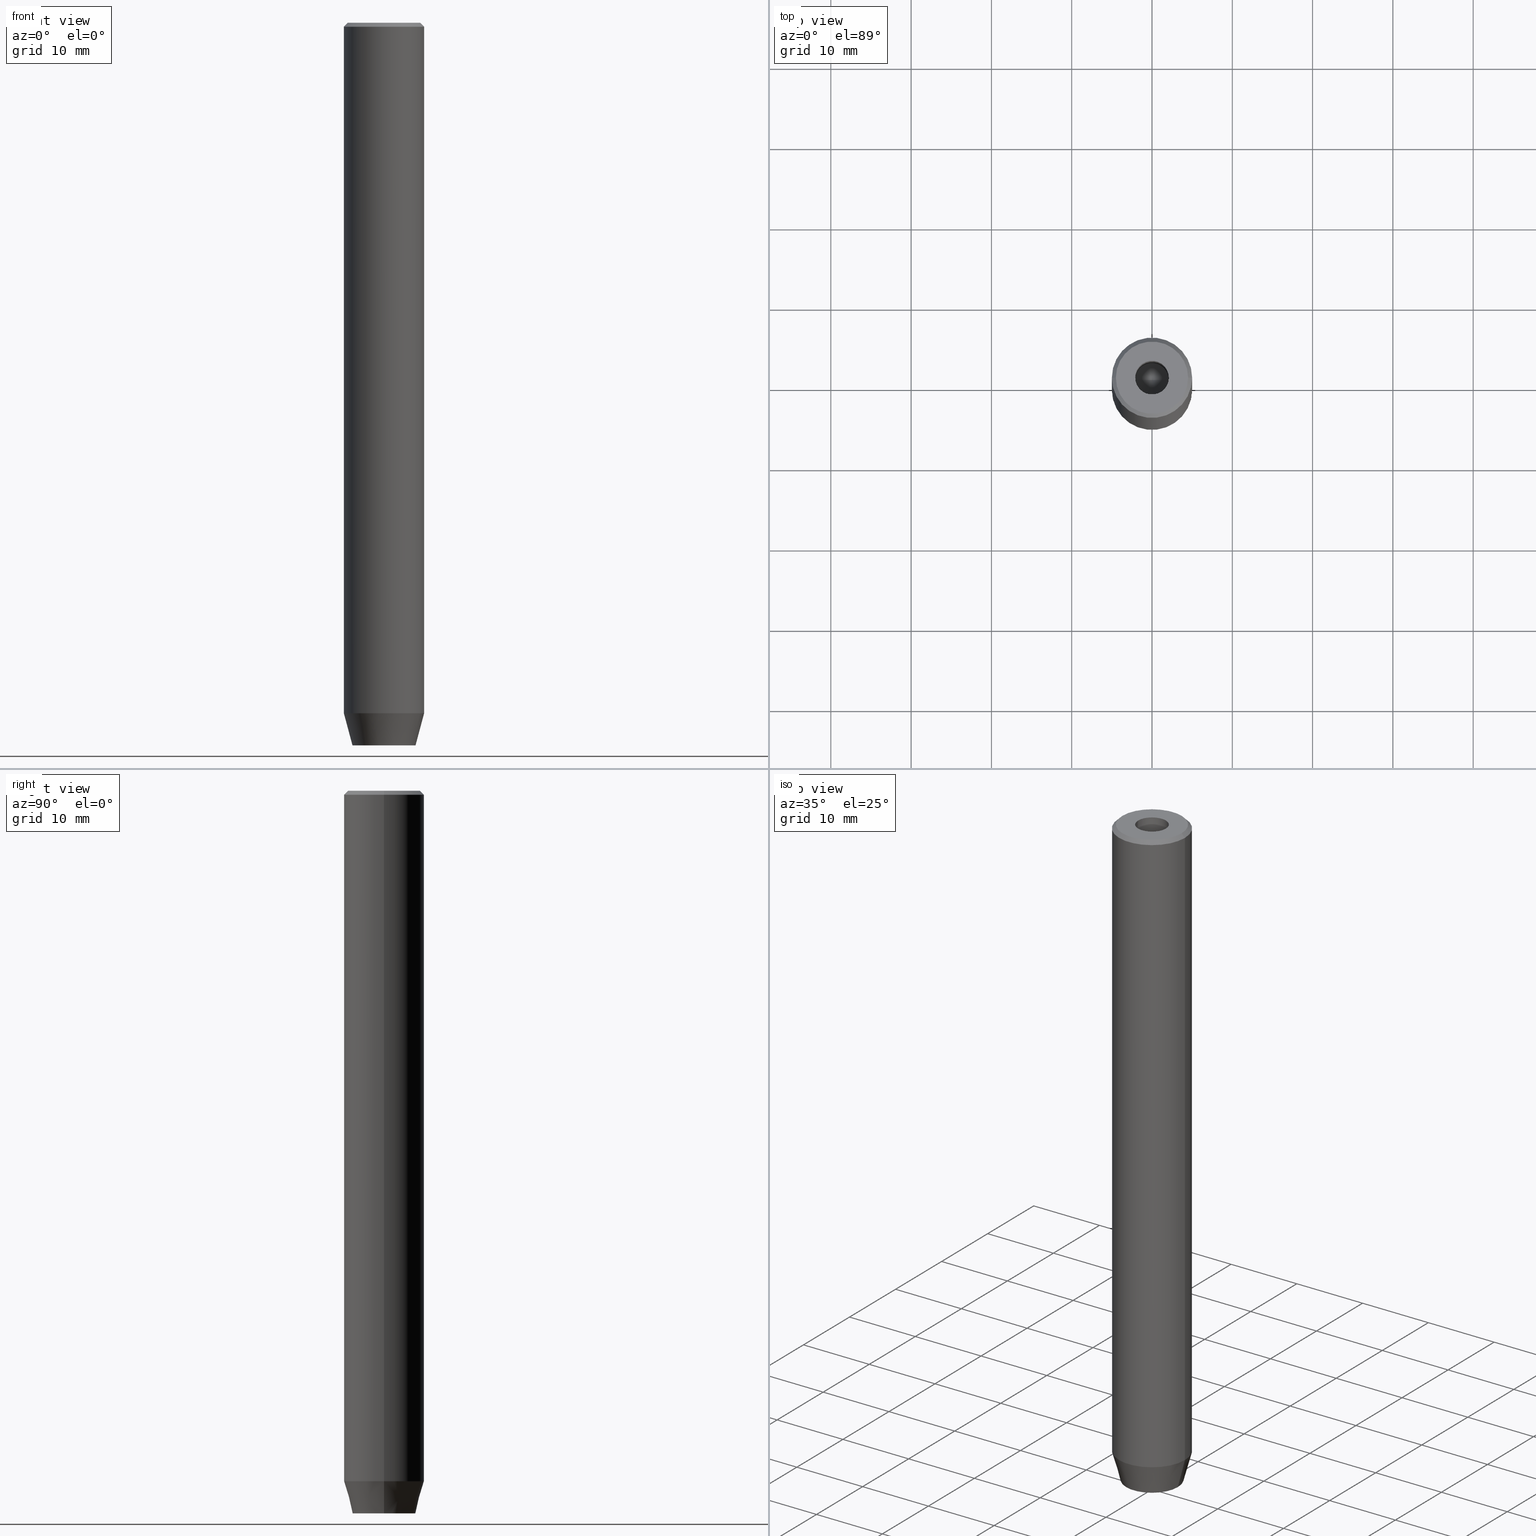
[diagram: canonical four-view strip — front | top / right | iso, engineering-drawing reading convention]
A machine part, canonical four-view strip (front | top / right | iso — engineering-drawing reading convention). The complete STEP part file that produces these views, byte-faithful:
ISO-10303-21;
HEADER;
FILE_DESCRIPTION (( 'STEP AP203' ),
    '1' );
FILE_NAME ('7428.STEP',
    '2024-01-02T21:57:57',
    ( '' ),
    ( '' ),
    'SwSTEP 2.0',
    'SolidWorks 2019',
    '' );
FILE_SCHEMA (( 'CONFIG_CONTROL_DESIGN' ));
ENDSEC;

DATA;
#1 = DATE_TIME_ROLE ( 'classification_date' ) ;
#2 = FACE_OUTER_BOUND ( 'NONE', #259, .T. ) ;
#3 = VECTOR ( 'NONE', #384, 1000.000000000000114 ) ;
#4 = ORIENTED_EDGE ( 'NONE', *, *, #580, .F. ) ;
#5 = CC_DESIGN_APPROVAL ( #71, ( #130 ) ) ;
#6 = DATE_AND_TIME ( #44, #23 ) ;
#7 = DIRECTION ( 'NONE',  ( 5.633679745264339711E-16, 1.000000000000000000, 0.000000000000000000 ) ) ;
#8 = ORIENTED_EDGE ( 'NONE', *, *, #153, .T. ) ;
#9 = CARTESIAN_POINT ( 'NONE',  ( 0.000000000000000000, 0.000000000000000000, -86.00000000000000000 ) ) ;
#10 = ORIENTED_EDGE ( 'NONE', *, *, #163, .T. ) ;
#11 = ADVANCED_FACE ( 'NONE', ( #397 ), #528, .F. ) ;
#12 = DIRECTION ( 'NONE',  ( 1.000000000000000000, 0.000000000000000000, 0.000000000000000000 ) ) ;
#13 = EDGE_LOOP ( 'NONE', ( #513, #24, #208, #211 ) ) ;
#14 = AXIS2_PLACEMENT_3D ( 'NONE', #88, #166, #123 ) ;
#15 = AXIS2_PLACEMENT_3D ( 'NONE', #234, #412, #143 ) ;
#16 = CARTESIAN_POINT ( 'NONE',  ( 2.000000000000000888, 0.000000000000000000, -90.00000000000000000 ) ) ;
#17 = DIRECTION ( 'NONE',  ( 1.000000000000000000, 0.000000000000000000, 0.000000000000000000 ) ) ;
#18 = VERTEX_POINT ( 'NONE', #126 ) ;
#19 = LINE ( 'NONE', #255, #476 ) ;
#20 = LINE ( 'NONE', #215, #484 ) ;
#21 = ORIENTED_EDGE ( 'NONE', *, *, #287, .T. ) ;
#22 = AXIS2_PLACEMENT_3D ( 'NONE', #226, #481, #309 ) ;
#23 = LOCAL_TIME ( 22, 57, 57.00000000000000000, #51 ) ;
#24 = ORIENTED_EDGE ( 'NONE', *, *, #439, .T. ) ;
#25 = DIRECTION ( 'NONE',  ( -0.000000000000000000, -0.000000000000000000, -1.000000000000000000 ) ) ;
#26 = EDGE_CURVE ( 'NONE', #503, #388, #132, .T. ) ;
#27 = ORIENTED_EDGE ( 'NONE', *, *, #540, .F. ) ;
#28 = LINE ( 'NONE', #489, #248 ) ;
#29 = FACE_OUTER_BOUND ( 'NONE', #119, .T. ) ;
#30 = EDGE_CURVE ( 'NONE', #64, #194, #185, .T. ) ;
#31 = LINE ( 'NONE', #39, #334 ) ;
#32 = CARTESIAN_POINT ( 'NONE',  ( -5.000000000000000000, 6.123233995736766282E-16, -86.00000000000000000 ) ) ;
#33 = VECTOR ( 'NONE', #190, 1000.000000000000000 ) ;
#34 = CARTESIAN_POINT ( 'NONE',  ( 0.000000000000000000, 0.000000000000000000, -15.00000000000000000 ) ) ;
#35 = VERTEX_POINT ( 'NONE', #440 ) ;
#36 = PRODUCT_RELATED_PRODUCT_CATEGORY ( 'detail', '', ( #457 ) ) ;
#37 = APPROVAL_ROLE ( '' ) ;
#38 = CARTESIAN_POINT ( 'NONE',  ( -1.000000000000000444, 1.732050807568877637, -90.00000000000000000 ) ) ;
#39 = CARTESIAN_POINT ( 'NONE',  ( -2.099999999999996980, 2.571758278209438013E-16, -15.00000000000000000 ) ) ;
#40 = EDGE_CURVE ( 'NONE', #18, #245, #31, .T. ) ;
#41 = DIRECTION ( 'NONE',  ( -0.2588190451025210725, 3.169619151431769255E-17, 0.9659258262890680902 ) ) ;
#42 = CARTESIAN_POINT ( 'NONE',  ( -3.928203230275506996, 5.466947754046979141E-16, -90.00000000000000000 ) ) ;
#43 = DIRECTION ( 'NONE',  ( -0.000000000000000000, -0.000000000000000000, -1.000000000000000000 ) ) ;
#44 = CALENDAR_DATE ( 2024, 2, 1 ) ;
#45 = DIRECTION ( 'NONE',  ( 0.8660254037844385966, -0.4999999999999999445, 0.000000000000000000 ) ) ;
#46 = AXIS2_PLACEMENT_3D ( 'NONE', #222, #176, #451 ) ;
#47 = EDGE_LOOP ( 'NONE', ( #286, #263, #467, #314 ) ) ;
#48 = LOCAL_TIME ( 22, 57, 57.00000000000000000, #418 ) ;
#49 = PERSON_AND_ORGANIZATION_ROLE ( 'classification_officer' ) ;
#50 = CARTESIAN_POINT ( 'NONE',  ( 0.000000000000000000, 0.000000000000000000, -15.00000000000000000 ) ) ;
#51 = COORDINATED_UNIVERSAL_TIME_OFFSET ( 1, 0, .AHEAD. ) ;
#52 = PLANE ( 'NONE',  #15 ) ;
#53 = ORIENTED_EDGE ( 'NONE', *, *, #410, .F. ) ;
#54 = LINE ( 'NONE', #512, #344 ) ;
#55 = COORDINATED_UNIVERSAL_TIME_OFFSET ( 1, 0, .AHEAD. ) ;
#56 = CONICAL_SURFACE ( 'NONE', #469, 5.000000000000000000, 0.2617993877991497964 ) ;
#57 = ORIENTED_EDGE ( 'NONE', *, *, #60, .F. ) ;
#58 = DIRECTION ( 'NONE',  ( -0.000000000000000000, -0.000000000000000000, 1.000000000000000000 ) ) ;
#59 = VERTEX_POINT ( 'NONE', #81 ) ;
#60 = EDGE_CURVE ( 'NONE', #521, #388, #179, .T. ) ;
#61 = DIRECTION ( 'NONE',  ( -0.000000000000000000, -0.000000000000000000, -1.000000000000000000 ) ) ;
#62 = CARTESIAN_POINT ( 'NONE',  ( 0.000000000000000000, 0.000000000000000000, -1.990051048614449116E-16 ) ) ;
#63 = CARTESIAN_POINT ( 'NONE',  ( 2.099999999999997868, 0.000000000000000000, 0.000000000000000000 ) ) ;
#64 = VERTEX_POINT ( 'NONE', #134 ) ;
#65 = AXIS2_PLACEMENT_3D ( 'NONE', #34, #172, #534 ) ;
#66 = CC_DESIGN_APPROVAL ( #465, ( #261 ) ) ;
#67 = CARTESIAN_POINT ( 'NONE',  ( 0.000000000000000000, 0.000000000000000000, -0.4999999999999857891 ) ) ;
#68 = APPLICATION_CONTEXT ( 'configuration controlled 3d designs of mechanical parts and assemblies' ) ;
#69 = LINE ( 'NONE', #383, #3 ) ;
#70 = VERTEX_POINT ( 'NONE', #217 ) ;
#71 = APPROVAL ( #445, 'NEUR�EN�' ) ;
#72 = LINE ( 'NONE', #559, #396 ) ;
#73 = ORIENTED_EDGE ( 'NONE', *, *, #161, .F. ) ;
#74 = CIRCLE ( 'NONE', #335, 5.000000000000000000 ) ;
#75 = DIRECTION ( 'NONE',  ( -0.000000000000000000, -0.000000000000000000, 1.000000000000000000 ) ) ;
#76 = VECTOR ( 'NONE', #392, 1000.000000000000000 ) ;
#77 = ADVANCED_FACE ( 'NONE', ( #491 ), #173, .F. ) ;
#78 = LINE ( 'NONE', #395, #122 ) ;
#79 = EDGE_LOOP ( 'NONE', ( #152, #53, #545, #330 ) ) ;
#80 = DIRECTION ( 'NONE',  ( 1.000000000000000000, 0.000000000000000000, 0.000000000000000000 ) ) ;
#81 = CARTESIAN_POINT ( 'NONE',  ( -1.999999999999998668, -1.154700538379252572, -90.00000000000000000 ) ) ;
#82 = DESIGN_CONTEXT ( 'detailed design', #68, 'design' ) ;
#83 = CIRCLE ( 'NONE', #358, 2.099999999999996980 ) ;
#84 = APPLICATION_PROTOCOL_DEFINITION ( 'international standard', 'config_control_design', 1994, #68 ) ;
#85 = CONICAL_SURFACE ( 'NONE', #505, 2.099999999999996980, 1.029744258676652535 ) ;
#86 = CARTESIAN_POINT ( 'NONE',  ( 0.000000000000000000, 0.000000000000000000, -15.00000000000000000 ) ) ;
#87 = CARTESIAN_POINT ( 'NONE',  ( -1.999999999999997780, 1.154700538379253238, -90.00000000000000000 ) ) ;
#88 = CARTESIAN_POINT ( 'NONE',  ( 0.000000000000000000, 0.000000000000000000, 0.000000000000000000 ) ) ;
#89 = VERTEX_POINT ( 'NONE', #87 ) ;
#90 = DIRECTION ( 'NONE',  ( -0.000000000000000000, 0.000000000000000000, -1.000000000000000000 ) ) ;
#91 = DIRECTION ( 'NONE',  ( -0.000000000000000000, -0.000000000000000000, 1.000000000000000000 ) ) ;
#92 = PERSON_AND_ORGANIZATION ( #536, #477 ) ;
#93 = AXIS2_PLACEMENT_3D ( 'NONE', #402, #301, #219 ) ;
#94 = DIRECTION ( 'NONE',  ( 1.000000000000000000, 0.000000000000000000, 0.000000000000000000 ) ) ;
#95 = APPROVAL_STATUS ( 'not_yet_approved' ) ;
#96 = FACE_OUTER_BOUND ( 'NONE', #452, .T. ) ;
#97 = EDGE_CURVE ( 'NONE', #264, #464, #414, .T. ) ;
#98 = PERSON_AND_ORGANIZATION ( #536, #477 ) ;
#99 = CARTESIAN_POINT ( 'NONE',  ( -5.000000000000000000, 6.123233995736766282E-16, -0.4999999999999857891 ) ) ;
#100 = ORIENTED_EDGE ( 'NONE', *, *, #432, .F. ) ;
#101 = LINE ( 'NONE', #283, #260 ) ;
#102 = VECTOR ( 'NONE', #337, 1000.000000000000000 ) ;
#103 = EDGE_CURVE ( 'NONE', #284, #89, #170, .T. ) ;
#104 = ORIENTED_EDGE ( 'NONE', *, *, #161, .T. ) ;
#105 = CARTESIAN_POINT ( 'NONE',  ( 2.000000000000000888, -1.154700538379252572, -87.20000000000000284 ) ) ;
#106 = DIRECTION ( 'NONE',  ( -0.8660254037844385966, 0.5000000000000001110, 0.000000000000000000 ) ) ;
#107 = ORIENTED_EDGE ( 'NONE', *, *, #205, .T. ) ;
#108 = VERTEX_POINT ( 'NONE', #485 ) ;
#109 = ORIENTED_EDGE ( 'NONE', *, *, #164, .T. ) ;
#110 = DIRECTION ( 'NONE',  ( 0.000000000000000000, 0.000000000000000000, -1.000000000000000000 ) ) ;
#111 = EDGE_LOOP ( 'NONE', ( #324, #488, #100, #350 ) ) ;
#112 = VECTOR ( 'NONE', #7, 1000.000000000000000 ) ;
#113 = PLANE ( 'NONE',  #443 ) ;
#114 = ORIENTED_EDGE ( 'NONE', *, *, #26, .T. ) ;
#115 = FACE_OUTER_BOUND ( 'NONE', #148, .T. ) ;
#116 = ORIENTED_EDGE ( 'NONE', *, *, #311, .F. ) ;
#117 = EDGE_LOOP ( 'NONE', ( #121, #423, #249, #425 ) ) ;
#118 = FACE_OUTER_BOUND ( 'NONE', #339, .T. ) ;
#119 = EDGE_LOOP ( 'NONE', ( #196, #557, #566, #365 ) ) ;
#120 = EDGE_CURVE ( 'NONE', #254, #380, #354, .T. ) ;
#121 = ORIENTED_EDGE ( 'NONE', *, *, #287, .F. ) ;
#122 = VECTOR ( 'NONE', #178, 1000.000000000000000 ) ;
#123 = DIRECTION ( 'NONE',  ( 1.000000000000000000, 0.000000000000000000, 0.000000000000000000 ) ) ;
#124 = EDGE_LOOP ( 'NONE', ( #444, #526, #520 ) ) ;
#125 = EDGE_CURVE ( 'NONE', #35, #245, #83, .T. ) ;
#126 = CARTESIAN_POINT ( 'NONE',  ( -3.982994051648894933E-15, 0.000000000000000000, -16.26180729995787644 ) ) ;
#127 = PLANE ( 'NONE',  #461 ) ;
#128 = VECTOR ( 'NONE', #553, 999.9999999999998863 ) ;
#129 = CARTESIAN_POINT ( 'NONE',  ( -2.099999999999998757, 2.571758278209439985E-16, -1.990051048614449116E-16 ) ) ;
#130 = PRODUCT_DEFINITION ( 'NEZN�M�', '', #261, #82 ) ;
#131 = CARTESIAN_POINT ( 'NONE',  ( -1.000000000000000222, -1.732050807568877637, -87.20000000000000284 ) ) ;
#132 = LINE ( 'NONE', #361, #366 ) ;
#133 = CALENDAR_DATE ( 2024, 2, 1 ) ;
#134 = CARTESIAN_POINT ( 'NONE',  ( 5.000000000000000000, 0.000000000000000000, -0.4999999999999857891 ) ) ;
#135 = ADVANCED_FACE ( 'NONE', ( #578 ), #429, .T. ) ;
#136 = VECTOR ( 'NONE', #43, 1000.000000000000000 ) ;
#137 = VECTOR ( 'NONE', #258, 1000.000000000000000 ) ;
#138 = APPROVAL_PERSON_ORGANIZATION ( #181, #390, #364 ) ;
#139 = CARTESIAN_POINT ( 'NONE',  ( 0.000000000000000000, 0.000000000000000000, 0.000000000000000000 ) ) ;
#140 = VERTEX_POINT ( 'NONE', #317 ) ;
#141 = MANIFOLD_SOLID_BREP ( 'Vrt�k z�vitn�ku pro M5 z�vit1', #156 ) ;
#142 = ADVANCED_FACE ( 'NONE', ( #243 ), #56, .T. ) ;
#143 = DIRECTION ( 'NONE',  ( 1.000000000000000000, 0.000000000000000000, 0.000000000000000000 ) ) ;
#144 = ORIENTED_EDGE ( 'NONE', *, *, #326, .F. ) ;
#145 = DIRECTION ( 'NONE',  ( -0.000000000000000000, -0.000000000000000000, 1.000000000000000000 ) ) ;
#146 = CC_DESIGN_PERSON_AND_ORGANIZATION_ASSIGNMENT ( #454, #411, ( #261 ) ) ;
#147 = CIRCLE ( 'NONE', #213, 5.000000000000000000 ) ;
#148 = EDGE_LOOP ( 'NONE', ( #435, #516, #522, #332 ) ) ;
#149 = CIRCLE ( 'NONE', #546, 5.000000000000000000 ) ;
#150 = DIRECTION ( 'NONE',  ( 1.000000000000000000, 0.000000000000000000, 0.000000000000000000 ) ) ;
#151 = DIRECTION ( 'NONE',  ( -0.7071067811865450192, 0.000000000000000000, -0.7071067811865500152 ) ) ;
#152 = ORIENTED_EDGE ( 'NONE', *, *, #415, .T. ) ;
#153 = EDGE_CURVE ( 'NONE', #140, #167, #74, .T. ) ;
#154 = DIRECTION ( 'NONE',  ( 5.633679745264339711E-16, 1.000000000000000000, 0.000000000000000000 ) ) ;
#155 = CARTESIAN_POINT ( 'NONE',  ( 2.168404344971008868E-16, -2.309401076758503812, -87.20000000000000284 ) ) ;
#156 = CLOSED_SHELL ( 'NONE', ( #391, #225, #135, #303, #347, #455, #229, #323, #142, #474, #434, #77, #352, #11, #273, #232, #514, #381, #198 ) ) ;
#157 = VERTEX_POINT ( 'NONE', #363 ) ;
#158 = AXIS2_PLACEMENT_3D ( 'NONE', #50, #549, #458 ) ;
#159 = ORIENTED_EDGE ( 'NONE', *, *, #563, .T. ) ;
#160 = CARTESIAN_POINT ( 'NONE',  ( 0.000000000000000000, 0.000000000000000000, -90.00000000000000000 ) ) ;
#161 = EDGE_CURVE ( 'NONE', #191, #254, #498, .T. ) ;
#162 = ORIENTED_EDGE ( 'NONE', *, *, #253, .F. ) ;
#163 = EDGE_CURVE ( 'NONE', #167, #194, #240, .T. ) ;
#164 = EDGE_CURVE ( 'NONE', #140, #64, #555, .T. ) ;
#165 = CIRCLE ( 'NONE', #281, 3.928203230275506996 ) ;
#166 = DIRECTION ( 'NONE',  ( -0.000000000000000000, -0.000000000000000000, 1.000000000000000000 ) ) ;
#167 = VERTEX_POINT ( 'NONE', #416 ) ;
#168 = ORIENTED_EDGE ( 'NONE', *, *, #393, .F. ) ;
#169 = CYLINDRICAL_SURFACE ( 'NONE', #14, 5.000000000000000000 ) ;
#170 = LINE ( 'NONE', #360, #289 ) ;
#171 = CC_DESIGN_PERSON_AND_ORGANIZATION_ASSIGNMENT ( #351, #482, ( #457 ) ) ;
#172 = DIRECTION ( 'NONE',  ( -0.000000000000000000, -0.000000000000000000, 1.000000000000000000 ) ) ;
#173 = PLANE ( 'NONE',  #212 ) ;
#174 = CARTESIAN_POINT ( 'NONE',  ( 0.000000000000000000, 2.309401076758503812, -87.20000000000000284 ) ) ;
#175 = AXIS2_PLACEMENT_3D ( 'NONE', #340, #110, #333 ) ;
#176 = DIRECTION ( 'NONE',  ( -0.000000000000000000, -0.000000000000000000, 1.000000000000000000 ) ) ;
#177 = DIRECTION ( 'NONE',  ( -0.8660254037844388186, -0.4999999999999996114, 0.000000000000000000 ) ) ;
#178 = DIRECTION ( 'NONE',  ( 0.8660254037844385966, -0.5000000000000001110, 0.000000000000000000 ) ) ;
#179 = LINE ( 'NONE', #220, #136 ) ;
#180 = EDGE_CURVE ( 'NONE', #59, #89, #371, .T. ) ;
#181 = PERSON_AND_ORGANIZATION ( #536, #477 ) ;
#182 = DIRECTION ( 'NONE',  ( -0.000000000000000000, -0.000000000000000000, 1.000000000000000000 ) ) ;
#183 = ORIENTED_EDGE ( 'NONE', *, *, #519, .T. ) ;
#184 = CC_DESIGN_PERSON_AND_ORGANIZATION_ASSIGNMENT ( #92, #276, ( #261 ) ) ;
#185 = CIRCLE ( 'NONE', #568, 5.000000000000000000 ) ;
#186 = CIRCLE ( 'NONE', #430, 3.928203230275506996 ) ;
#187 = AXIS2_PLACEMENT_3D ( 'NONE', #300, #480, #356 ) ;
#188 = PLANE ( 'NONE',  #554 ) ;
#189 = ORIENTED_EDGE ( 'NONE', *, *, #164, .F. ) ;
#190 = DIRECTION ( 'NONE',  ( 0.8660254037844385966, -0.5000000000000001110, 0.000000000000000000 ) ) ;
#191 = VERTEX_POINT ( 'NONE', #587 ) ;
#192 = CARTESIAN_POINT ( 'NONE',  ( -5.000000000000000000, 6.123233995736766282E-16, 0.000000000000000000 ) ) ;
#193 = CALENDAR_DATE ( 2024, 2, 1 ) ;
#194 = VERTEX_POINT ( 'NONE', #99 ) ;
#195 = AXIS2_PLACEMENT_3D ( 'NONE', #438, #523, #80 ) ;
#196 = ORIENTED_EDGE ( 'NONE', *, *, #497, .T. ) ;
#197 = DIRECTION ( 'NONE',  ( 0.000000000000000000, 0.000000000000000000, -1.000000000000000000 ) ) ;
#198 = ADVANCED_FACE ( 'NONE', ( #96 ), #279, .F. ) ;
#199 = ORIENTED_EDGE ( 'NONE', *, *, #163, .F. ) ;
#200 = EDGE_CURVE ( 'NONE', #264, #194, #54, .T. ) ;
#201 = LINE ( 'NONE', #63, #137 ) ;
#202 = ORIENTED_EDGE ( 'NONE', *, *, #539, .F. ) ;
#203 = DIRECTION ( 'NONE',  ( 1.000000000000000000, 0.000000000000000000, 0.000000000000000000 ) ) ;
#204 = EDGE_LOOP ( 'NONE', ( #114, #57, #262, #299 ) ) ;
#205 = EDGE_CURVE ( 'NONE', #521, #70, #374, .T. ) ;
#206 = DIRECTION ( 'NONE',  ( -0.000000000000000000, -0.000000000000000000, 1.000000000000000000 ) ) ;
#207 = EDGE_LOOP ( 'NONE', ( #144, #162 ) ) ;
#208 = ORIENTED_EDGE ( 'NONE', *, *, #247, .T. ) ;
#209 =( NAMED_UNIT ( * ) PLANE_ANGLE_UNIT ( ) SI_UNIT ( $, .RADIAN. ) );
#210 = CYLINDRICAL_SURFACE ( 'NONE', #367, 5.000000000000000000 ) ;
#211 = ORIENTED_EDGE ( 'NONE', *, *, #558, .F. ) ;
#212 = AXIS2_PLACEMENT_3D ( 'NONE', #572, #313, #401 ) ;
#213 = AXIS2_PLACEMENT_3D ( 'NONE', #67, #251, #424 ) ;
#214 = CC_DESIGN_SECURITY_CLASSIFICATION ( #398, ( #261 ) ) ;
#215 = CARTESIAN_POINT ( 'NONE',  ( -1.000000000000000222, -1.732050807568877637, -90.00000000000000000 ) ) ;
#216 = DIRECTION ( 'NONE',  ( -0.5000000000000000000, -0.8660254037844387076, 0.000000000000000000 ) ) ;
#217 = CARTESIAN_POINT ( 'NONE',  ( -1.999999999999998668, -1.154700538379252572, -87.20000000000000284 ) ) ;
#218 = COORDINATED_UNIVERSAL_TIME_OFFSET ( 1, 0, .AHEAD. ) ;
#219 = DIRECTION ( 'NONE',  ( 1.000000000000000000, 0.000000000000000000, 0.000000000000000000 ) ) ;
#220 = CARTESIAN_POINT ( 'NONE',  ( 2.168404344971008868E-16, -2.309401076758503812, -87.20000000000000284 ) ) ;
#221 = DIRECTION ( 'NONE',  ( 1.000000000000000000, 0.000000000000000000, 0.000000000000000000 ) ) ;
#222 = CARTESIAN_POINT ( 'NONE',  ( 0.000000000000000000, 0.000000000000000000, 0.000000000000000000 ) ) ;
#223 = CARTESIAN_POINT ( 'NONE',  ( 0.000000000000000000, 0.000000000000000000, 0.000000000000000000 ) ) ;
#224 = AXIS2_PLACEMENT_3D ( 'NONE', #139, #145, #244 ) ;
#225 = ADVANCED_FACE ( 'NONE', ( #277 ), #377, .F. ) ;
#226 = CARTESIAN_POINT ( 'NONE',  ( 0.000000000000000000, 0.000000000000000000, 0.000000000000000000 ) ) ;
#227 = LOCAL_TIME ( 22, 57, 57.00000000000000000, #55 ) ;
#228 = CARTESIAN_POINT ( 'NONE',  ( 0.000000000000000000, 0.000000000000000000, 0.000000000000000000 ) ) ;
#229 = ADVANCED_FACE ( 'NONE', ( #231, #409 ), #52, .T. ) ;
#230 = COORDINATED_UNIVERSAL_TIME_OFFSET ( 1, 0, .AHEAD. ) ;
#231 = FACE_BOUND ( 'NONE', #207, .T. ) ;
#232 = ADVANCED_FACE ( 'NONE', ( #2 ), #188, .F. ) ;
#233 = LINE ( 'NONE', #16, #102 ) ;
#234 = CARTESIAN_POINT ( 'NONE',  ( 0.000000000000000000, 0.000000000000000000, 0.000000000000000000 ) ) ;
#235 = VERTEX_POINT ( 'NONE', #285 ) ;
#236 = APPROVAL_ROLE ( '' ) ;
#237 = VECTOR ( 'NONE', #403, 1000.000000000000000 ) ;
#238 = VECTOR ( 'NONE', #459, 1000.000000000000000 ) ;
#239 = LOCAL_TIME ( 22, 57, 57.00000000000000000, #218 ) ;
#240 = LINE ( 'NONE', #192, #387 ) ;
#241 = ORIENTED_EDGE ( 'NONE', *, *, #580, .T. ) ;
#242 = DATE_TIME_ROLE ( 'creation_date' ) ;
#243 = FACE_OUTER_BOUND ( 'NONE', #13, .T. ) ;
#244 = DIRECTION ( 'NONE',  ( 1.000000000000000000, 0.000000000000000000, 0.000000000000000000 ) ) ;
#245 = VERTEX_POINT ( 'NONE', #466 ) ;
#246 = PLANE ( 'NONE',  #175 ) ;
#247 = EDGE_CURVE ( 'NONE', #157, #140, #101, .T. ) ;
#248 = VECTOR ( 'NONE', #441, 1000.000000000000000 ) ;
#249 = ORIENTED_EDGE ( 'NONE', *, *, #257, .F. ) ;
#250 = CARTESIAN_POINT ( 'NONE',  ( 0.000000000000000000, 3.928203230275506996, -90.00000000000000000 ) ) ;
#251 = DIRECTION ( 'NONE',  ( 0.000000000000000000, 0.000000000000000000, -1.000000000000000000 ) ) ;
#252 = CC_DESIGN_DATE_AND_TIME_ASSIGNMENT ( #586, #1, ( #398 ) ) ;
#253 = EDGE_CURVE ( 'NONE', #394, #421, #582, .T. ) ;
#254 = VERTEX_POINT ( 'NONE', #343 ) ;
#255 = CARTESIAN_POINT ( 'NONE',  ( -1.999999999999998224, 1.126735949052866956E-15, -87.20000000000000284 ) ) ;
#256 = ORIENTED_EDGE ( 'NONE', *, *, #40, .F. ) ;
#257 = EDGE_CURVE ( 'NONE', #194, #64, #147, .T. ) ;
#258 = DIRECTION ( 'NONE',  ( -0.000000000000000000, -0.000000000000000000, 1.000000000000000000 ) ) ;
#259 = EDGE_LOOP ( 'NONE', ( #345, #27, #73, #159 ) ) ;
#260 = VECTOR ( 'NONE', #463, 1000.000000000000114 ) ;
#261 = PRODUCT_DEFINITION_FORMATION_WITH_SPECIFIED_SOURCE ( 'LIBOVOLN�', '', #457, .NOT_KNOWN. ) ;
#262 = ORIENTED_EDGE ( 'NONE', *, *, #519, .F. ) ;
#263 = ORIENTED_EDGE ( 'NONE', *, *, #103, .F. ) ;
#264 = VERTEX_POINT ( 'NONE', #532 ) ;
#265 = DIRECTION ( 'NONE',  ( 0.8660254037844385966, 0.5000000000000001110, 0.000000000000000000 ) ) ;
#266 = DIRECTION ( 'NONE',  ( 0.8660254037844388186, 0.4999999999999996669, 0.000000000000000000 ) ) ;
#267 = VECTOR ( 'NONE', #490, 1000.000000000000000 ) ;
#268 = PERSON_AND_ORGANIZATION ( #536, #477 ) ;
#269 = PLANE ( 'NONE',  #298 ) ;
#270 = DIRECTION ( 'NONE',  ( 1.000000000000000000, 0.000000000000000000, 0.000000000000000000 ) ) ;
#271 = CARTESIAN_POINT ( 'NONE',  ( 2.099999999999996980, 0.000000000000000000, -15.00000000000000000 ) ) ;
#272 = CARTESIAN_POINT ( 'NONE',  ( 0.9999999999999997780, -1.732050807568878747, -87.20000000000000284 ) ) ;
#273 = ADVANCED_FACE ( 'NONE', ( #581 ), #269, .F. ) ;
#274 = CARTESIAN_POINT ( 'NONE',  ( 2.168404344971008868E-16, -2.309401076758503812, -90.00000000000000000 ) ) ;
#275 = CARTESIAN_POINT ( 'NONE',  ( 0.000000000000000000, 0.000000000000000000, -15.00000000000000000 ) ) ;
#276 = PERSON_AND_ORGANIZATION_ROLE ( 'creator' ) ;
#277 = FACE_OUTER_BOUND ( 'NONE', #124, .T. ) ;
#278 = ORIENTED_EDGE ( 'NONE', *, *, #432, .T. ) ;
#279 = CYLINDRICAL_SURFACE ( 'NONE', #224, 2.099999999999997868 ) ;
#280 = ORIENTED_EDGE ( 'NONE', *, *, #125, .T. ) ;
#281 = AXIS2_PLACEMENT_3D ( 'NONE', #160, #75, #203 ) ;
#282 = VECTOR ( 'NONE', #25, 1000.000000000000000 ) ;
#283 = CARTESIAN_POINT ( 'NONE',  ( 5.000000000000000000, 0.000000000000000000, -86.00000000000000000 ) ) ;
#284 = VERTEX_POINT ( 'NONE', #448 ) ;
#285 = CARTESIAN_POINT ( 'NONE',  ( 0.000000000000000000, 2.309401076758503812, -90.00000000000000000 ) ) ;
#286 = ORIENTED_EDGE ( 'NONE', *, *, #180, .T. ) ;
#287 = EDGE_CURVE ( 'NONE', #464, #264, #315, .T. ) ;
#288 = ORIENTED_EDGE ( 'NONE', *, *, #26, .F. ) ;
#289 = VECTOR ( 'NONE', #405, 1000.000000000000000 ) ;
#290 = AXIS2_PLACEMENT_3D ( 'NONE', #294, #292, #433 ) ;
#291 = ORIENTED_EDGE ( 'NONE', *, *, #253, .T. ) ;
#292 = DIRECTION ( 'NONE',  ( 0.000000000000000000, 0.000000000000000000, -1.000000000000000000 ) ) ;
#293 = EDGE_LOOP ( 'NONE', ( #8, #10, #382, #189 ) ) ;
#294 = CARTESIAN_POINT ( 'NONE',  ( 0.000000000000000000, 0.000000000000000000, 0.000000000000000000 ) ) ;
#295 = EDGE_LOOP ( 'NONE', ( #525, #21 ) ) ;
#296 = FACE_BOUND ( 'NONE', #473, .T. ) ;
#297 = ORIENTED_EDGE ( 'NONE', *, *, #326, .T. ) ;
#298 = AXIS2_PLACEMENT_3D ( 'NONE', #584, #404, #90 ) ;
#299 = ORIENTED_EDGE ( 'NONE', *, *, #410, .T. ) ;
#300 = CARTESIAN_POINT ( 'NONE',  ( 0.000000000000000000, 0.000000000000000000, 0.000000000000000000 ) ) ;
#301 = DIRECTION ( 'NONE',  ( -0.000000000000000000, -0.000000000000000000, 1.000000000000000000 ) ) ;
#302 = ORIENTED_EDGE ( 'NONE', *, *, #180, .F. ) ;
#303 = ADVANCED_FACE ( 'NONE', ( #29 ), #321, .T. ) ;
#304 = FACE_OUTER_BOUND ( 'NONE', #509, .T. ) ;
#305 = DIRECTION ( 'NONE',  ( -0.8571673007021113344, 1.049727191138617463E-16, 0.5150380749100558209 ) ) ;
#306 = LINE ( 'NONE', #271, #453 ) ;
#307 = DIRECTION ( 'NONE',  ( 0.4999999999999996669, -0.8660254037844388186, 0.000000000000000000 ) ) ;
#308 = LINE ( 'NONE', #569, #76 ) ;
#309 = DIRECTION ( 'NONE',  ( 1.000000000000000000, 0.000000000000000000, 0.000000000000000000 ) ) ;
#310 = ORIENTED_EDGE ( 'NONE', *, *, #331, .F. ) ;
#311 = EDGE_CURVE ( 'NONE', #89, #235, #359, .T. ) ;
#312 = FACE_OUTER_BOUND ( 'NONE', #293, .T. ) ;
#313 = DIRECTION ( 'NONE',  ( -1.000000000000000000, 5.633679745264339711E-16, 0.000000000000000000 ) ) ;
#314 = ORIENTED_EDGE ( 'NONE', *, *, #357, .T. ) ;
#315 = CIRCLE ( 'NONE', #46, 4.500000000000017764 ) ;
#316 = LOCAL_TIME ( 22, 57, 57.00000000000000000, #230 ) ;
#317 = CARTESIAN_POINT ( 'NONE',  ( 5.000000000000000000, 0.000000000000000000, -86.00000000000000000 ) ) ;
#318 = DATE_AND_TIME ( #500, #239 ) ;
#319 = CARTESIAN_POINT ( 'NONE',  ( 1.000000000000000444, 1.732050807568877637, -87.20000000000000284 ) ) ;
#320 = ORIENTED_EDGE ( 'NONE', *, *, #205, .F. ) ;
#321 = CONICAL_SURFACE ( 'NONE', #195, 5.000000000000000000, 0.2617993877991497964 ) ;
#322 = CARTESIAN_POINT ( 'NONE',  ( 5.000000000000000000, 0.000000000000000000, 0.000000000000000000 ) ) ;
#323 = ADVANCED_FACE ( 'NONE', ( #406 ), #169, .T. ) ;
#324 = ORIENTED_EDGE ( 'NONE', *, *, #311, .T. ) ;
#325 = ORIENTED_EDGE ( 'NONE', *, *, #120, .T. ) ;
#326 = EDGE_CURVE ( 'NONE', #421, #394, #562, .T. ) ;
#327 = FACE_OUTER_BOUND ( 'NONE', #499, .T. ) ;
#328 = CARTESIAN_POINT ( 'NONE',  ( 0.000000000000000000, 0.000000000000000000, -86.00000000000000000 ) ) ;
#329 = SHAPE_DEFINITION_REPRESENTATION ( #552, #355 ) ;
#330 = ORIENTED_EDGE ( 'NONE', *, *, #540, .T. ) ;
#331 = EDGE_CURVE ( 'NONE', #235, #108, #78, .T. ) ;
#332 = ORIENTED_EDGE ( 'NONE', *, *, #30, .F. ) ;
#333 = DIRECTION ( 'NONE',  ( -1.000000000000000000, 0.000000000000000000, -0.000000000000000000 ) ) ;
#334 = VECTOR ( 'NONE', #305, 1000.000000000000000 ) ;
#335 = AXIS2_PLACEMENT_3D ( 'NONE', #328, #182, #12 ) ;
#336 = APPROVAL_PERSON_ORGANIZATION ( #548, #465, #236 ) ;
#337 = DIRECTION ( 'NONE',  ( 0.000000000000000000, -1.000000000000000000, 0.000000000000000000 ) ) ;
#338 = CC_DESIGN_PERSON_AND_ORGANIZATION_ASSIGNMENT ( #98, #450, ( #130 ) ) ;
#339 = EDGE_LOOP ( 'NONE', ( #493, #413 ) ) ;
#340 = CARTESIAN_POINT ( 'NONE',  ( 0.000000000000000000, 0.000000000000000000, -87.20000000000000284 ) ) ;
#341 = ORIENTED_EDGE ( 'NONE', *, *, #415, .F. ) ;
#342 =( LENGTH_UNIT ( ) NAMED_UNIT ( * ) SI_UNIT ( .MILLI., .METRE. ) );
#343 = CARTESIAN_POINT ( 'NONE',  ( 2.000000000000000888, 1.154700538379251462, -87.20000000000000284 ) ) ;
#344 = VECTOR ( 'NONE', #151, 1000.000000000000000 ) ;
#345 = ORIENTED_EDGE ( 'NONE', *, *, #331, .T. ) ;
#346 = VECTOR ( 'NONE', #265, 1000.000000000000000 ) ;
#347 = ADVANCED_FACE ( 'NONE', ( #312 ), #210, .T. ) ;
#348 = MECHANICAL_CONTEXT ( 'NONE', #529, 'mechanical' ) ;
#349 = LINE ( 'NONE', #353, #267 ) ;
#350 = ORIENTED_EDGE ( 'NONE', *, *, #103, .T. ) ;
#351 = PERSON_AND_ORGANIZATION ( #536, #477 ) ;
#352 = ADVANCED_FACE ( 'NONE', ( #537 ), #127, .F. ) ;
#353 = CARTESIAN_POINT ( 'NONE',  ( -1.999999999999998668, -1.154700538379252572, -87.20000000000000284 ) ) ;
#354 = LINE ( 'NONE', #583, #237 ) ;
#355 = ADVANCED_BREP_SHAPE_REPRESENTATION ( '7428', ( #141, #187 ), #431 ) ;
#356 = DIRECTION ( 'NONE',  ( 1.000000000000000000, 0.000000000000000000, 0.000000000000000000 ) ) ;
#357 = EDGE_CURVE ( 'NONE', #70, #59, #349, .T. ) ;
#358 = AXIS2_PLACEMENT_3D ( 'NONE', #275, #533, #270 ) ;
#359 = LINE ( 'NONE', #38, #346 ) ;
#360 = CARTESIAN_POINT ( 'NONE',  ( -1.999999999999997780, 1.154700538379253238, -87.20000000000000284 ) ) ;
#361 = CARTESIAN_POINT ( 'NONE',  ( 0.9999999999999997780, -1.732050807568878747, -90.00000000000000000 ) ) ;
#362 = PERSON_AND_ORGANIZATION ( #536, #477 ) ;
#363 = CARTESIAN_POINT ( 'NONE',  ( 3.928203230275506996, 0.000000000000000000, -90.00000000000000000 ) ) ;
#364 = APPROVAL_ROLE ( '' ) ;
#365 = ORIENTED_EDGE ( 'NONE', *, *, #247, .F. ) ;
#366 = VECTOR ( 'NONE', #177, 1000.000000000000114 ) ;
#367 = AXIS2_PLACEMENT_3D ( 'NONE', #400, #483, #571 ) ;
#368 = CARTESIAN_POINT ( 'NONE',  ( 1.000000000000000444, 1.732050807568877637, -87.20000000000000284 ) ) ;
#369 = EDGE_LOOP ( 'NONE', ( #561, #550, #320, #478 ) ) ;
#370 = APPROVAL_DATE_TIME ( #318, #71 ) ;
#371 = LINE ( 'NONE', #542, #112 ) ;
#372 = DATE_AND_TIME ( #133, #48 ) ;
#373 = EDGE_CURVE ( 'NONE', #18, #35, #306, .T. ) ;
#374 = LINE ( 'NONE', #508, #128 ) ;
#375 = DATE_AND_TIME ( #193, #227 ) ;
#376 = DIRECTION ( 'NONE',  ( -0.5000000000000001110, 0.8660254037844385966, 0.000000000000000000 ) ) ;
#377 = CONICAL_SURFACE ( 'NONE', #158, 2.099999999999996980, 1.029744258676652535 ) ;
#378 = DIRECTION ( 'NONE',  ( -0.000000000000000000, -0.000000000000000000, 1.000000000000000000 ) ) ;
#379 = CC_DESIGN_PERSON_AND_ORGANIZATION_ASSIGNMENT ( #362, #49, ( #398 ) ) ;
#380 = VERTEX_POINT ( 'NONE', #442 ) ;
#381 = ADVANCED_FACE ( 'NONE', ( #446 ), #85, .F. ) ;
#382 = ORIENTED_EDGE ( 'NONE', *, *, #257, .T. ) ;
#383 = CARTESIAN_POINT ( 'NONE',  ( 0.9999999999999997780, -1.732050807568878747, -87.20000000000000284 ) ) ;
#384 = DIRECTION ( 'NONE',  ( -0.8660254037844388186, -0.4999999999999996114, 0.000000000000000000 ) ) ;
#385 = VERTEX_POINT ( 'NONE', #42 ) ;
#386 = DIRECTION ( 'NONE',  ( -1.000000000000000000, 0.000000000000000000, -0.000000000000000000 ) ) ;
#387 = VECTOR ( 'NONE', #378, 1000.000000000000000 ) ;
#388 = VERTEX_POINT ( 'NONE', #274 ) ;
#389 = LINE ( 'NONE', #511, #535 ) ;
#390 = APPROVAL ( #95, 'NEUR�EN�' ) ;
#391 = ADVANCED_FACE ( 'NONE', ( #304 ), #577, .F. ) ;
#392 = DIRECTION ( 'NONE',  ( -0.000000000000000000, -0.000000000000000000, -1.000000000000000000 ) ) ;
#393 = EDGE_CURVE ( 'NONE', #245, #35, #495, .T. ) ;
#394 = VERTEX_POINT ( 'NONE', #129 ) ;
#395 = CARTESIAN_POINT ( 'NONE',  ( 1.000000000000000444, 1.732050807568877637, -90.00000000000000000 ) ) ;
#396 = VECTOR ( 'NONE', #472, 1000.000000000000000 ) ;
#397 = FACE_OUTER_BOUND ( 'NONE', #204, .T. ) ;
#398 = SECURITY_CLASSIFICATION ( '', '', #496 ) ;
#399 = UNCERTAINTY_MEASURE_WITH_UNIT (LENGTH_MEASURE( 1.000000000000000082E-05 ), #342, 'distance_accuracy_value', 'NONE');
#400 = CARTESIAN_POINT ( 'NONE',  ( 0.000000000000000000, 0.000000000000000000, 0.000000000000000000 ) ) ;
#401 = DIRECTION ( 'NONE',  ( -5.633679745264339711E-16, -1.000000000000000000, 0.000000000000000000 ) ) ;
#402 = CARTESIAN_POINT ( 'NONE',  ( 0.000000000000000000, 0.000000000000000000, -1.990051048614449116E-16 ) ) ;
#403 = DIRECTION ( 'NONE',  ( 0.000000000000000000, -1.000000000000000000, 0.000000000000000000 ) ) ;
#404 = DIRECTION ( 'NONE',  ( 1.000000000000000000, 0.000000000000000000, -0.000000000000000000 ) ) ;
#405 = DIRECTION ( 'NONE',  ( -0.000000000000000000, -0.000000000000000000, -1.000000000000000000 ) ) ;
#406 = FACE_OUTER_BOUND ( 'NONE', #560, .T. ) ;
#407 = DIRECTION ( 'NONE',  ( 0.000000000000000000, 0.000000000000000000, -1.000000000000000000 ) ) ;
#408 = CALENDAR_DATE ( 2024, 2, 1 ) ;
#409 = FACE_OUTER_BOUND ( 'NONE', #295, .T. ) ;
#410 = EDGE_CURVE ( 'NONE', #380, #503, #462, .T. ) ;
#411 = PERSON_AND_ORGANIZATION_ROLE ( 'design_supplier' ) ;
#412 = DIRECTION ( 'NONE',  ( 0.000000000000000000, -0.000000000000000000, 1.000000000000000000 ) ) ;
#413 = ORIENTED_EDGE ( 'NONE', *, *, #439, .F. ) ;
#414 = CIRCLE ( 'NONE', #543, 4.500000000000017764 ) ;
#415 = EDGE_CURVE ( 'NONE', #108, #503, #233, .T. ) ;
#416 = CARTESIAN_POINT ( 'NONE',  ( -5.000000000000000000, 6.123233995736766282E-16, -86.00000000000000000 ) ) ;
#417 = ORIENTED_EDGE ( 'NONE', *, *, #373, .T. ) ;
#418 = COORDINATED_UNIVERSAL_TIME_OFFSET ( 1, 0, .AHEAD. ) ;
#419 = EDGE_CURVE ( 'NONE', #70, #284, #19, .T. ) ;
#420 = DIRECTION ( 'NONE',  ( 1.000000000000000000, 0.000000000000000000, 0.000000000000000000 ) ) ;
#421 = VERTEX_POINT ( 'NONE', #426 ) ;
#422 = CARTESIAN_POINT ( 'NONE',  ( -1.000000000000000444, 1.732050807568877637, -87.20000000000000284 ) ) ;
#423 = ORIENTED_EDGE ( 'NONE', *, *, #460, .T. ) ;
#424 = DIRECTION ( 'NONE',  ( 1.000000000000000000, 0.000000000000000000, 0.000000000000000000 ) ) ;
#425 = ORIENTED_EDGE ( 'NONE', *, *, #200, .F. ) ;
#426 = CARTESIAN_POINT ( 'NONE',  ( 2.099999999999998757, 0.000000000000000000, -1.990051048614449116E-16 ) ) ;
#427 = ORIENTED_EDGE ( 'NONE', *, *, #492, .T. ) ;
#428 = CARTESIAN_POINT ( 'NONE',  ( 0.000000000000000000, 0.000000000000000000, -90.00000000000000000 ) ) ;
#429 = CONICAL_SURFACE ( 'NONE', #504, 4.500000000000017764, 0.7853981633974447263 ) ;
#430 = AXIS2_PLACEMENT_3D ( 'NONE', #428, #206, #150 ) ;
#431 =( GEOMETRIC_REPRESENTATION_CONTEXT ( 3 ) GLOBAL_UNCERTAINTY_ASSIGNED_CONTEXT ( ( #399 ) ) GLOBAL_UNIT_ASSIGNED_CONTEXT ( ( #342, #209, #486 ) ) REPRESENTATION_CONTEXT ( 'NONE', 'WORKASPACE' ) );
#432 = EDGE_CURVE ( 'NONE', #284, #191, #389, .T. ) ;
#433 = DIRECTION ( 'NONE',  ( -1.000000000000000000, 0.000000000000000000, 0.000000000000000000 ) ) ;
#434 = ADVANCED_FACE ( 'NONE', ( #515 ), #518, .F. ) ;
#435 = ORIENTED_EDGE ( 'NONE', *, *, #460, .F. ) ;
#436 = ORIENTED_EDGE ( 'NONE', *, *, #125, .F. ) ;
#437 = CARTESIAN_POINT ( 'NONE',  ( 0.000000000000000000, 0.000000000000000000, -86.00000000000000000 ) ) ;
#438 = CARTESIAN_POINT ( 'NONE',  ( 0.000000000000000000, 0.000000000000000000, -86.00000000000000000 ) ) ;
#439 = EDGE_CURVE ( 'NONE', #385, #157, #165, .T. ) ;
#440 = CARTESIAN_POINT ( 'NONE',  ( 2.099999999999996980, 0.000000000000000000, -15.00000000000000000 ) ) ;
#441 = DIRECTION ( 'NONE',  ( -0.000000000000000000, -0.000000000000000000, 1.000000000000000000 ) ) ;
#442 = CARTESIAN_POINT ( 'NONE',  ( 2.000000000000000888, -1.154700538379252572, -87.20000000000000284 ) ) ;
#443 = AXIS2_PLACEMENT_3D ( 'NONE', #250, #197, #386 ) ;
#444 = ORIENTED_EDGE ( 'NONE', *, *, #373, .F. ) ;
#445 = APPROVAL_STATUS ( 'not_yet_approved' ) ;
#446 = FACE_OUTER_BOUND ( 'NONE', #585, .T. ) ;
#447 = ORIENTED_EDGE ( 'NONE', *, *, #558, .T. ) ;
#448 = CARTESIAN_POINT ( 'NONE',  ( -1.999999999999997780, 1.154700538379253238, -87.20000000000000284 ) ) ;
#449 = DIRECTION ( 'NONE',  ( 0.000000000000000000, 0.000000000000000000, -1.000000000000000000 ) ) ;
#450 = PERSON_AND_ORGANIZATION_ROLE ( 'creator' ) ;
#451 = DIRECTION ( 'NONE',  ( 1.000000000000000000, 0.000000000000000000, 0.000000000000000000 ) ) ;
#452 = EDGE_LOOP ( 'NONE', ( #4, #436, #427, #297 ) ) ;
#453 = VECTOR ( 'NONE', #487, 1000.000000000000000 ) ;
#454 = PERSON_AND_ORGANIZATION ( #536, #477 ) ;
#455 = ADVANCED_FACE ( 'NONE', ( #296, #118 ), #113, .T. ) ;
#456 = DIRECTION ( 'NONE',  ( -0.000000000000000000, -0.000000000000000000, 1.000000000000000000 ) ) ;
#457 = PRODUCT ( '7428', '7428', '', ( #348 ) ) ;
#458 = DIRECTION ( 'NONE',  ( 1.000000000000000000, 0.000000000000000000, 0.000000000000000000 ) ) ;
#459 = DIRECTION ( 'NONE',  ( -0.000000000000000000, -0.000000000000000000, 1.000000000000000000 ) ) ;
#460 = EDGE_CURVE ( 'NONE', #464, #64, #72, .T. ) ;
#461 = AXIS2_PLACEMENT_3D ( 'NONE', #131, #216, #45 ) ;
#462 = LINE ( 'NONE', #105, #524 ) ;
#463 = DIRECTION ( 'NONE',  ( 0.2588190451025210725, 0.000000000000000000, 0.9659258262890680902 ) ) ;
#464 = VERTEX_POINT ( 'NONE', #475 ) ;
#465 = APPROVAL ( #506, 'NEUR�EN�' ) ;
#466 = CARTESIAN_POINT ( 'NONE',  ( -2.099999999999996980, 2.571758278209438013E-16, -15.00000000000000000 ) ) ;
#467 = ORIENTED_EDGE ( 'NONE', *, *, #419, .F. ) ;
#468 = DIRECTION ( 'NONE',  ( 0.8660254037844385966, 0.5000000000000001110, 0.000000000000000000 ) ) ;
#469 = AXIS2_PLACEMENT_3D ( 'NONE', #9, #456, #420 ) ;
#470 = CARTESIAN_POINT ( 'NONE',  ( 2.000000000000000888, -1.154700538379252572, -90.00000000000000000 ) ) ;
#471 = CC_DESIGN_APPROVAL ( #390, ( #398 ) ) ;
#472 = DIRECTION ( 'NONE',  ( 0.7071067811865450192, 8.659560562354902043E-17, -0.7071067811865500152 ) ) ;
#473 = EDGE_LOOP ( 'NONE', ( #116, #302, #202, #288, #341, #310 ) ) ;
#474 = ADVANCED_FACE ( 'NONE', ( #115 ), #544, .T. ) ;
#475 = CARTESIAN_POINT ( 'NONE',  ( 4.500000000000017764, 5.817072295949938273E-16, 0.000000000000000000 ) ) ;
#476 = VECTOR ( 'NONE', #154, 1000.000000000000000 ) ;
#477 = ORGANIZATION ( 'NEUR�EN�', 'NEUR�EN�', '' ) ;
#478 = ORIENTED_EDGE ( 'NONE', *, *, #60, .T. ) ;
#479 = CC_DESIGN_DATE_AND_TIME_ASSIGNMENT ( #6, #242, ( #130 ) ) ;
#480 = DIRECTION ( 'NONE',  ( 0.000000000000000000, 0.000000000000000000, 1.000000000000000000 ) ) ;
#481 = DIRECTION ( 'NONE',  ( -0.000000000000000000, -0.000000000000000000, 1.000000000000000000 ) ) ;
#482 = PERSON_AND_ORGANIZATION_ROLE ( 'design_owner' ) ;
#483 = DIRECTION ( 'NONE',  ( -0.000000000000000000, -0.000000000000000000, 1.000000000000000000 ) ) ;
#484 = VECTOR ( 'NONE', #530, 999.9999999999998863 ) ;
#485 = CARTESIAN_POINT ( 'NONE',  ( 2.000000000000000888, 1.154700538379251462, -90.00000000000000000 ) ) ;
#486 =( NAMED_UNIT ( * ) SI_UNIT ( $, .STERADIAN. ) SOLID_ANGLE_UNIT ( ) );
#487 = DIRECTION ( 'NONE',  ( 0.8571673007021113344, 0.000000000000000000, 0.5150380749100558209 ) ) ;
#488 = ORIENTED_EDGE ( 'NONE', *, *, #563, .F. ) ;
#489 = CARTESIAN_POINT ( 'NONE',  ( -2.099999999999997868, 2.571758278209438999E-16, 0.000000000000000000 ) ) ;
#490 = DIRECTION ( 'NONE',  ( -0.000000000000000000, -0.000000000000000000, -1.000000000000000000 ) ) ;
#491 = FACE_OUTER_BOUND ( 'NONE', #47, .T. ) ;
#492 = EDGE_CURVE ( 'NONE', #35, #421, #201, .T. ) ;
#493 = ORIENTED_EDGE ( 'NONE', *, *, #497, .F. ) ;
#494 = AXIS2_PLACEMENT_3D ( 'NONE', #272, #307, #266 ) ;
#495 = CIRCLE ( 'NONE', #65, 2.099999999999996980 ) ;
#496 = SECURITY_CLASSIFICATION_LEVEL ( 'unclassified' ) ;
#497 = EDGE_CURVE ( 'NONE', #157, #385, #186, .T. ) ;
#498 = LINE ( 'NONE', #368, #33 ) ;
#499 = EDGE_LOOP ( 'NONE', ( #278, #104, #325, #183, #107, #510 ) ) ;
#500 = CALENDAR_DATE ( 2024, 2, 1 ) ;
#501 = ORIENTED_EDGE ( 'NONE', *, *, #30, .T. ) ;
#502 = DIRECTION ( 'NONE',  ( 0.5000000000000001110, 0.8660254037844385966, -0.000000000000000000 ) ) ;
#503 = VERTEX_POINT ( 'NONE', #470 ) ;
#504 = AXIS2_PLACEMENT_3D ( 'NONE', #228, #407, #547 ) ;
#505 = AXIS2_PLACEMENT_3D ( 'NONE', #86, #574, #527 ) ;
#506 = APPROVAL_STATUS ( 'not_yet_approved' ) ;
#507 = APPROVAL_PERSON_ORGANIZATION ( #268, #71, #37 ) ;
#508 = CARTESIAN_POINT ( 'NONE',  ( -1.000000000000000222, -1.732050807568877637, -87.20000000000000284 ) ) ;
#509 = EDGE_LOOP ( 'NONE', ( #168, #241, #291, #538 ) ) ;
#510 = ORIENTED_EDGE ( 'NONE', *, *, #419, .T. ) ;
#511 = CARTESIAN_POINT ( 'NONE',  ( -1.000000000000000444, 1.732050807568877637, -87.20000000000000284 ) ) ;
#512 = CARTESIAN_POINT ( 'NONE',  ( -4.500000000000017764, 0.000000000000000000, 0.000000000000000000 ) ) ;
#513 = ORIENTED_EDGE ( 'NONE', *, *, #556, .F. ) ;
#514 = ADVANCED_FACE ( 'NONE', ( #327 ), #246, .T. ) ;
#515 = FACE_OUTER_BOUND ( 'NONE', #111, .T. ) ;
#516 = ORIENTED_EDGE ( 'NONE', *, *, #97, .F. ) ;
#517 = AXIS2_PLACEMENT_3D ( 'NONE', #62, #58, #17 ) ;
#518 = PLANE ( 'NONE',  #570 ) ;
#519 = EDGE_CURVE ( 'NONE', #380, #521, #69, .T. ) ;
#520 = ORIENTED_EDGE ( 'NONE', *, *, #393, .T. ) ;
#521 = VERTEX_POINT ( 'NONE', #155 ) ;
#522 = ORIENTED_EDGE ( 'NONE', *, *, #200, .T. ) ;
#523 = DIRECTION ( 'NONE',  ( -0.000000000000000000, -0.000000000000000000, 1.000000000000000000 ) ) ;
#524 = VECTOR ( 'NONE', #61, 1000.000000000000000 ) ;
#525 = ORIENTED_EDGE ( 'NONE', *, *, #97, .T. ) ;
#526 = ORIENTED_EDGE ( 'NONE', *, *, #40, .T. ) ;
#527 = DIRECTION ( 'NONE',  ( 1.000000000000000000, 0.000000000000000000, 0.000000000000000000 ) ) ;
#528 = PLANE ( 'NONE',  #494 ) ;
#529 = APPLICATION_CONTEXT ( 'configuration controlled 3d designs of mechanical parts and assemblies' ) ;
#530 = DIRECTION ( 'NONE',  ( -0.8660254037844387076, 0.5000000000000001110, 0.000000000000000000 ) ) ;
#531 = APPROVAL_DATE_TIME ( #375, #390 ) ;
#532 = CARTESIAN_POINT ( 'NONE',  ( -4.500000000000017764, 0.000000000000000000, 0.000000000000000000 ) ) ;
#533 = DIRECTION ( 'NONE',  ( -0.000000000000000000, -0.000000000000000000, 1.000000000000000000 ) ) ;
#534 = DIRECTION ( 'NONE',  ( 1.000000000000000000, 0.000000000000000000, 0.000000000000000000 ) ) ;
#535 = VECTOR ( 'NONE', #468, 1000.000000000000000 ) ;
#536 = PERSON ( 'NEUR�EN�', 'NEUR�EN�', 'NEUR�EN�', ('NEUR�EN�'), ('NEUR�EN�'), ('NEUR�EN�') ) ;
#537 = FACE_OUTER_BOUND ( 'NONE', #369, .T. ) ;
#538 = ORIENTED_EDGE ( 'NONE', *, *, #492, .F. ) ;
#539 = EDGE_CURVE ( 'NONE', #388, #59, #20, .T. ) ;
#540 = EDGE_CURVE ( 'NONE', #254, #108, #308, .T. ) ;
#541 = CARTESIAN_POINT ( 'NONE',  ( 0.000000000000000000, 0.000000000000000000, -0.4999999999999857891 ) ) ;
#542 = CARTESIAN_POINT ( 'NONE',  ( -1.999999999999998224, 1.126735949052866956E-15, -90.00000000000000000 ) ) ;
#543 = AXIS2_PLACEMENT_3D ( 'NONE', #223, #91, #575 ) ;
#544 = CONICAL_SURFACE ( 'NONE', #290, 4.500000000000017764, 0.7853981633974447263 ) ;
#545 = ORIENTED_EDGE ( 'NONE', *, *, #120, .F. ) ;
#546 = AXIS2_PLACEMENT_3D ( 'NONE', #437, #576, #221 ) ;
#547 = DIRECTION ( 'NONE',  ( -1.000000000000000000, 0.000000000000000000, 0.000000000000000000 ) ) ;
#548 = PERSON_AND_ORGANIZATION ( #536, #477 ) ;
#549 = DIRECTION ( 'NONE',  ( -0.000000000000000000, -0.000000000000000000, 1.000000000000000000 ) ) ;
#550 = ORIENTED_EDGE ( 'NONE', *, *, #357, .F. ) ;
#551 = APPROVAL_DATE_TIME ( #372, #465 ) ;
#552 = PRODUCT_DEFINITION_SHAPE ( 'NONE', 'NONE',  #130 ) ;
#553 = DIRECTION ( 'NONE',  ( -0.8660254037844387076, 0.5000000000000001110, 0.000000000000000000 ) ) ;
#554 = AXIS2_PLACEMENT_3D ( 'NONE', #319, #502, #106 ) ;
#555 = LINE ( 'NONE', #322, #238 ) ;
#556 = EDGE_CURVE ( 'NONE', #385, #167, #579, .T. ) ;
#557 = ORIENTED_EDGE ( 'NONE', *, *, #556, .T. ) ;
#558 = EDGE_CURVE ( 'NONE', #167, #140, #149, .T. ) ;
#559 = CARTESIAN_POINT ( 'NONE',  ( 4.500000000000017764, 5.510910596163111249E-16, 0.000000000000000000 ) ) ;
#560 = EDGE_LOOP ( 'NONE', ( #199, #447, #109, #501 ) ) ;
#561 = ORIENTED_EDGE ( 'NONE', *, *, #539, .T. ) ;
#562 = CIRCLE ( 'NONE', #93, 2.099999999999998757 ) ;
#563 = EDGE_CURVE ( 'NONE', #191, #235, #573, .T. ) ;
#564 = DIRECTION ( 'NONE',  ( -0.8660254037844385966, -0.5000000000000001110, 0.000000000000000000 ) ) ;
#565 = VECTOR ( 'NONE', #41, 1000.000000000000114 ) ;
#566 = ORIENTED_EDGE ( 'NONE', *, *, #153, .F. ) ;
#567 = APPLICATION_PROTOCOL_DEFINITION ( 'international standard', 'config_control_design', 1994, #529 ) ;
#568 = AXIS2_PLACEMENT_3D ( 'NONE', #541, #449, #94 ) ;
#569 = CARTESIAN_POINT ( 'NONE',  ( 2.000000000000000888, 1.154700538379251462, -87.20000000000000284 ) ) ;
#570 = AXIS2_PLACEMENT_3D ( 'NONE', #422, #376, #564 ) ;
#571 = DIRECTION ( 'NONE',  ( 1.000000000000000000, 0.000000000000000000, 0.000000000000000000 ) ) ;
#572 = CARTESIAN_POINT ( 'NONE',  ( -1.999999999999998224, 1.126735949052866956E-15, -87.20000000000000284 ) ) ;
#573 = LINE ( 'NONE', #174, #282 ) ;
#574 = DIRECTION ( 'NONE',  ( -0.000000000000000000, -0.000000000000000000, 1.000000000000000000 ) ) ;
#575 = DIRECTION ( 'NONE',  ( 1.000000000000000000, 0.000000000000000000, 0.000000000000000000 ) ) ;
#576 = DIRECTION ( 'NONE',  ( -0.000000000000000000, -0.000000000000000000, 1.000000000000000000 ) ) ;
#577 = CYLINDRICAL_SURFACE ( 'NONE', #22, 2.099999999999997868 ) ;
#578 = FACE_OUTER_BOUND ( 'NONE', #117, .T. ) ;
#579 = LINE ( 'NONE', #32, #565 ) ;
#580 = EDGE_CURVE ( 'NONE', #245, #394, #28, .T. ) ;
#581 = FACE_OUTER_BOUND ( 'NONE', #79, .T. ) ;
#582 = CIRCLE ( 'NONE', #517, 2.099999999999998757 ) ;
#583 = CARTESIAN_POINT ( 'NONE',  ( 2.000000000000000888, 0.000000000000000000, -87.20000000000000284 ) ) ;
#584 = CARTESIAN_POINT ( 'NONE',  ( 2.000000000000000888, 0.000000000000000000, -87.20000000000000284 ) ) ;
#585 = EDGE_LOOP ( 'NONE', ( #256, #417, #280 ) ) ;
#586 = DATE_AND_TIME ( #408, #316 ) ;
#587 = CARTESIAN_POINT ( 'NONE',  ( 0.000000000000000000, 2.309401076758503812, -87.20000000000000284 ) ) ;
ENDSEC;
END-ISO-10303-21;
